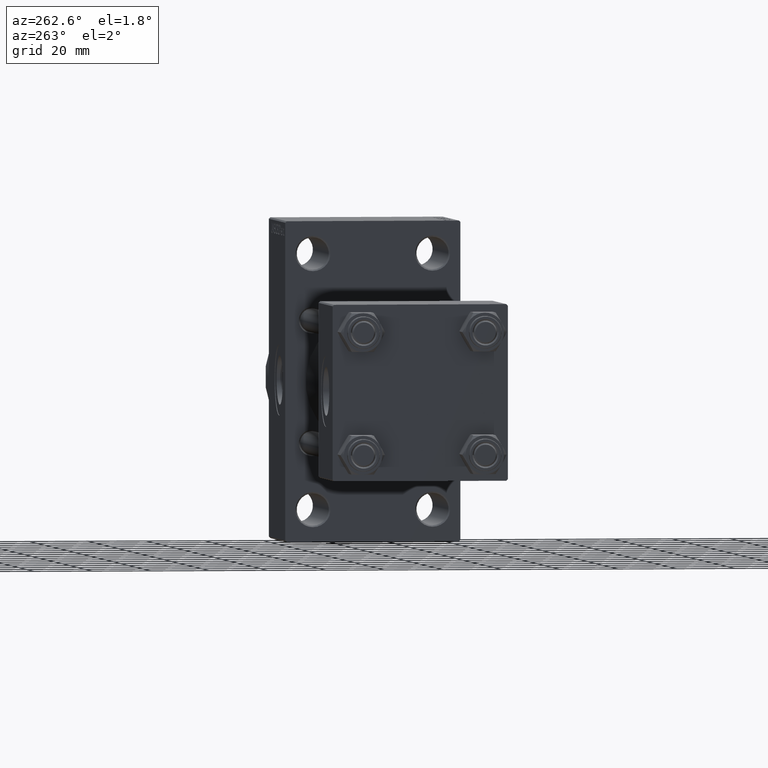
[diagram: clean part render]
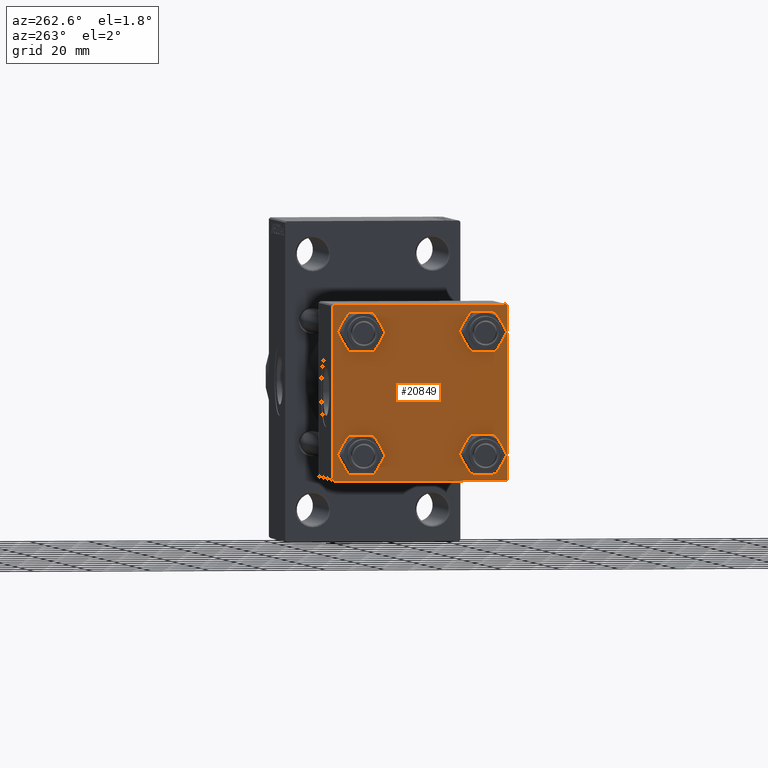
[diagram: same view with one face highlighted and labeled with its STEP entity id]
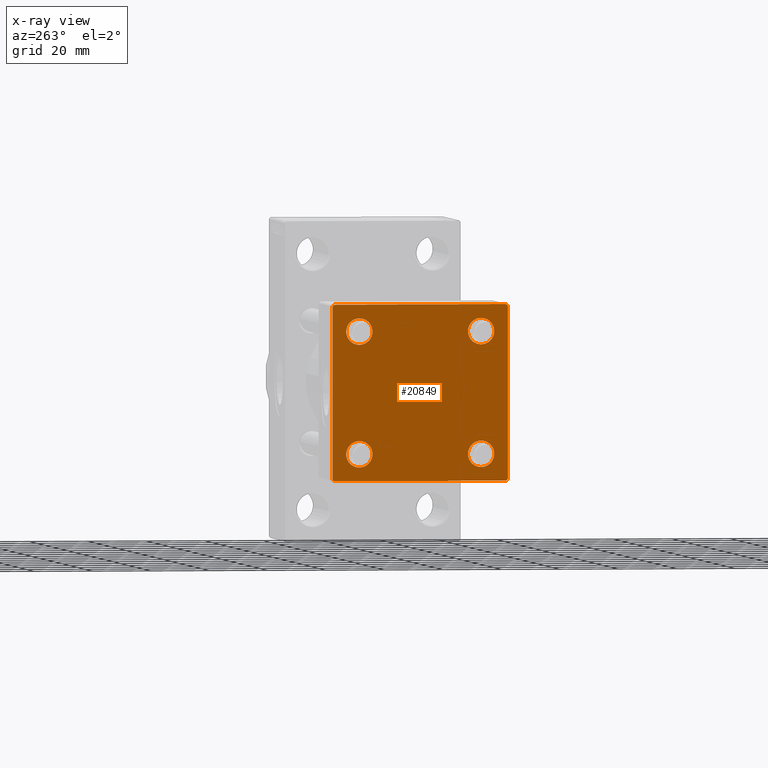
[diagram: x-ray of the same camera — body ghosted, the highlighted face saturated]
A machine part, auxiliary view. The second image highlights one B-rep face of the part: STEP entity #20849.
The next image is the same camera in x-ray: the body ghosted, the highlighted face saturated — about 0% of this face is hidden behind the body in this view.
In plain terms, the highlighted planar face has unit normal (-1, 0, 0).
Its self-contained STEP definition (entity closure, byte-faithful):
#867 = DIRECTION ( 'NONE',  ( 0.000000000000000000, 0.000000000000000000, 1.000000000000000000 ) ) ;
#990 = DIRECTION ( 'NONE',  ( -0.000000000000000000, 0.7071067811865474617, 0.7071067811865474617 ) ) ;
#1443 = ORIENTED_EDGE ( 'NONE', *, *, #4394, .T. ) ;
#2323 = ORIENTED_EDGE ( 'NONE', *, *, #10605, .T. ) ;
#2350 = AXIS2_PLACEMENT_3D ( 'NONE', #9908, #13728, #35718 ) ;
#3143 = CARTESIAN_POINT ( 'NONE',  ( 0.000000000000000000, -20.84999999999999076, -20.85000000000000497 ) ) ;
#3160 = VECTOR ( 'NONE', #990, 1000.000000000000114 ) ;
#3476 = VERTEX_POINT ( 'NONE', #24494 ) ;
#3585 = CARTESIAN_POINT ( 'NONE',  ( 0.000000000000000000, -29.50000000000000000, -30.00000000000000711 ) ) ;
#3857 = DIRECTION ( 'NONE',  ( 1.000000000000000000, -0.000000000000000000, 0.000000000000000000 ) ) ;
#4216 = EDGE_CURVE ( 'NONE', #7960, #3476, #6630, .T. ) ;
#4394 = EDGE_CURVE ( 'NONE', #7960, #18609, #8054, .T. ) ;
#4728 = ORIENTED_EDGE ( 'NONE', *, *, #12747, .T. ) ;
#6600 = CARTESIAN_POINT ( 'NONE',  ( 0.000000000000000000, 20.84999999999999787, -20.85000000000000142 ) ) ;
#6630 = LINE ( 'NONE', #28869, #22681 ) ;
#6731 = DIRECTION ( 'NONE',  ( 0.000000000000000000, -1.000000000000000000, -1.156482317317871725E-16 ) ) ;
#6924 = LINE ( 'NONE', #32986, #38442 ) ;
#7372 = ORIENTED_EDGE ( 'NONE', *, *, #18499, .T. ) ;
#7757 = CARTESIAN_POINT ( 'NONE',  ( 0.000000000000000000, -20.84999999999999076, -20.85000000000000497 ) ) ;
#7960 = VERTEX_POINT ( 'NONE', #35502 ) ;
#7989 = DIRECTION ( 'NONE',  ( 1.000000000000000000, -0.000000000000000000, 0.000000000000000000 ) ) ;
#8054 = LINE ( 'NONE', #15696, #31739 ) ;
#8230 = DIRECTION ( 'NONE',  ( 0.000000000000000000, 0.000000000000000000, 1.000000000000000000 ) ) ;
#8279 = CARTESIAN_POINT ( 'NONE',  ( 0.000000000000000000, 20.84999999999999787, 20.85000000000000142 ) ) ;
#8363 = CARTESIAN_POINT ( 'NONE',  ( 0.000000000000000000, 20.84999999999999787, -20.85000000000000142 ) ) ;
#8868 = ORIENTED_EDGE ( 'NONE', *, *, #19873, .T. ) ;
#8956 = DIRECTION ( 'NONE',  ( 0.000000000000000000, 0.000000000000000000, 1.000000000000000000 ) ) ;
#9288 = AXIS2_PLACEMENT_3D ( 'NONE', #3143, #3857, #25137 ) ;
#9869 = AXIS2_PLACEMENT_3D ( 'NONE', #8279, #44590, #867 ) ;
#9872 = VECTOR ( 'NONE', #46078, 999.9999999999998863 ) ;
#9908 = CARTESIAN_POINT ( 'NONE',  ( 0.000000000000000000, -20.84999999999999076, 20.85000000000000497 ) ) ;
#9994 = CARTESIAN_POINT ( 'NONE',  ( 0.000000000000000000, 29.74999999999957723, -29.75000000000040501 ) ) ;
#10014 = CIRCLE ( 'NONE', #9288, 4.500000000000017764 ) ;
#10504 = LINE ( 'NONE', #21506, #18946 ) ;
#10587 = VERTEX_POINT ( 'NONE', #22023 ) ;
#10605 = EDGE_CURVE ( 'NONE', #45793, #20346, #10014, .T. ) ;
#11517 = CARTESIAN_POINT ( 'NONE',  ( -0.000000000000000000, -29.74999999999999645, 29.74999999999999645 ) ) ;
#12050 = CARTESIAN_POINT ( 'NONE',  ( 0.000000000000000000, 20.84999999999999787, -25.35000000000001918 ) ) ;
#12642 = DIRECTION ( 'NONE',  ( -1.000000000000000000, 0.000000000000000000, -0.000000000000000000 ) ) ;
#12747 = EDGE_CURVE ( 'NONE', #42149, #37744, #28971, .T. ) ;
#12772 = CARTESIAN_POINT ( 'NONE',  ( 0.000000000000000000, 20.84999999999999787, 20.85000000000000142 ) ) ;
#13728 = DIRECTION ( 'NONE',  ( 1.000000000000000000, -0.000000000000000000, 0.000000000000000000 ) ) ;
#13858 = EDGE_CURVE ( 'NONE', #38407, #3476, #19390, .T. ) ;
#14162 = DIRECTION ( 'NONE',  ( 1.000000000000000000, -0.000000000000000000, 0.000000000000000000 ) ) ;
#14332 = EDGE_CURVE ( 'NONE', #28217, #38346, #32207, .T. ) ;
#15696 = CARTESIAN_POINT ( 'NONE',  ( 0.000000000000000000, 29.74999999999999645, 29.74999999999999645 ) ) ;
#15760 = DIRECTION ( 'NONE',  ( 0.000000000000000000, 0.000000000000000000, 1.000000000000000000 ) ) ;
#16234 = CARTESIAN_POINT ( 'NONE',  ( 0.000000000000000000, -20.84999999999999076, 25.35000000000002274 ) ) ;
#16248 = AXIS2_PLACEMENT_3D ( 'NONE', #7757, #7989, #8230 ) ;
#16388 = CIRCLE ( 'NONE', #20955, 4.500000000000017764 ) ;
#16488 = EDGE_LOOP ( 'NONE', ( #30243, #2323 ) ) ;
#16496 = ORIENTED_EDGE ( 'NONE', *, *, #37152, .T. ) ;
#16754 = EDGE_CURVE ( 'NONE', #20346, #45793, #23887, .T. ) ;
#16992 = DIRECTION ( 'NONE',  ( 0.000000000000000000, -0.7071067811865474617, 0.7071067811865474617 ) ) ;
#17117 = CIRCLE ( 'NONE', #36945, 4.500000000000017764 ) ;
#17249 = CARTESIAN_POINT ( 'NONE',  ( 0.000000000000000000, 29.99999999999999289, -30.00000000000000000 ) ) ;
#18499 = EDGE_CURVE ( 'NONE', #10587, #19920, #33074, .T. ) ;
#18609 = VERTEX_POINT ( 'NONE', #37341 ) ;
#18946 = VECTOR ( 'NONE', #36084, 1000.000000000000000 ) ;
#19349 = FACE_BOUND ( 'NONE', #41340, .T. ) ;
#19390 = LINE ( 'NONE', #11517, #3160 ) ;
#19823 = CIRCLE ( 'NONE', #9869, 4.500000000000017764 ) ;
#19873 = EDGE_CURVE ( 'NONE', #18609, #39795, #6924, .T. ) ;
#19920 = VERTEX_POINT ( 'NONE', #16234 ) ;
#20346 = VERTEX_POINT ( 'NONE', #29519 ) ;
#20729 = AXIS2_PLACEMENT_3D ( 'NONE', #6600, #21180, #25480 ) ;
#20849 = ADVANCED_FACE ( 'NONE', ( #37978, #34407, #19349, #30820, #30116 ), #45374, .T. ) ;
#20854 = CARTESIAN_POINT ( 'NONE',  ( 0.000000000000000000, -20.84999999999999076, 20.85000000000000497 ) ) ;
#20864 = EDGE_CURVE ( 'NONE', #38346, #28217, #17117, .T. ) ;
#20905 = CARTESIAN_POINT ( 'NONE',  ( 0.000000000000000000, -30.00000000000000000, -29.50000000000001776 ) ) ;
#20955 = AXIS2_PLACEMENT_3D ( 'NONE', #12772, #24225, #8956 ) ;
#21180 = DIRECTION ( 'NONE',  ( 1.000000000000000000, -0.000000000000000000, 0.000000000000000000 ) ) ;
#21409 = EDGE_CURVE ( 'NONE', #46199, #27266, #16388, .T. ) ;
#21506 = CARTESIAN_POINT ( 'NONE',  ( 0.000000000000000000, -30.00000000000000000, 29.99999999999999289 ) ) ;
#21524 = ORIENTED_EDGE ( 'NONE', *, *, #20864, .T. ) ;
#21737 = DIRECTION ( 'NONE',  ( 0.000000000000000000, 0.000000000000000000, -1.000000000000000000 ) ) ;
#21819 = DIRECTION ( 'NONE',  ( 0.000000000000000000, 0.000000000000000000, 1.000000000000000000 ) ) ;
#21830 = EDGE_CURVE ( 'NONE', #37744, #40565, #42315, .T. ) ;
#22023 = CARTESIAN_POINT ( 'NONE',  ( 0.000000000000000000, -20.84999999999999076, 16.34999999999998721 ) ) ;
#22042 = CARTESIAN_POINT ( 'NONE',  ( 0.000000000000000000, 29.99999999999999289, -29.50000000000000000 ) ) ;
#22681 = VECTOR ( 'NONE', #24795, 1000.000000000000000 ) ;
#22942 = DIRECTION ( 'NONE',  ( 1.000000000000000000, -0.000000000000000000, 0.000000000000000000 ) ) ;
#23887 = CIRCLE ( 'NONE', #16248, 4.500000000000017764 ) ;
#24225 = DIRECTION ( 'NONE',  ( 1.000000000000000000, -0.000000000000000000, 0.000000000000000000 ) ) ;
#24462 = CIRCLE ( 'NONE', #2350, 4.500000000000017764 ) ;
#24494 = CARTESIAN_POINT ( 'NONE',  ( 0.000000000000000000, -29.49999999999998579, 29.99999999999999289 ) ) ;
#24540 = CARTESIAN_POINT ( 'NONE',  ( 0.000000000000000000, 20.84999999999999787, 25.35000000000001918 ) ) ;
#24795 = DIRECTION ( 'NONE',  ( 0.000000000000000000, -1.000000000000000000, -1.156482317317871725E-16 ) ) ;
#25137 = DIRECTION ( 'NONE',  ( 0.000000000000000000, 0.000000000000000000, 1.000000000000000000 ) ) ;
#25480 = DIRECTION ( 'NONE',  ( 0.000000000000000000, 0.000000000000000000, 1.000000000000000000 ) ) ;
#26212 = AXIS2_PLACEMENT_3D ( 'NONE', #20854, #14162, #21819 ) ;
#27238 = DIRECTION ( 'NONE',  ( -0.000000000000000000, 0.000000000000000000, 1.000000000000000000 ) ) ;
#27266 = VERTEX_POINT ( 'NONE', #32225 ) ;
#28217 = VERTEX_POINT ( 'NONE', #12050 ) ;
#28869 = CARTESIAN_POINT ( 'NONE',  ( 0.000000000000000000, 29.99999999999999289, 30.00000000000000000 ) ) ;
#28971 = LINE ( 'NONE', #17249, #42899 ) ;
#29519 = CARTESIAN_POINT ( 'NONE',  ( 0.000000000000000000, -20.84999999999999076, -16.34999999999998721 ) ) ;
#30116 = FACE_OUTER_BOUND ( 'NONE', #41166, .T. ) ;
#30243 = ORIENTED_EDGE ( 'NONE', *, *, #16754, .T. ) ;
#30286 = DIRECTION ( 'NONE',  ( 0.000000000000000000, 0.7071067811865474617, -0.7071067811865474617 ) ) ;
#30603 = ORIENTED_EDGE ( 'NONE', *, *, #21409, .T. ) ;
#30820 = FACE_BOUND ( 'NONE', #33891, .T. ) ;
#31457 = ORIENTED_EDGE ( 'NONE', *, *, #4216, .F. ) ;
#31739 = VECTOR ( 'NONE', #30286, 1000.000000000000114 ) ;
#31753 = ORIENTED_EDGE ( 'NONE', *, *, #40100, .F. ) ;
#32207 = CIRCLE ( 'NONE', #20729, 4.500000000000017764 ) ;
#32225 = CARTESIAN_POINT ( 'NONE',  ( 0.000000000000000000, 20.84999999999999787, 16.34999999999998366 ) ) ;
#32408 = VECTOR ( 'NONE', #16992, 1000.000000000000114 ) ;
#32986 = CARTESIAN_POINT ( 'NONE',  ( 0.000000000000000000, 29.99999999999999289, 30.00000000000000000 ) ) ;
#33074 = CIRCLE ( 'NONE', #26212, 4.500000000000017764 ) ;
#33255 = CARTESIAN_POINT ( 'NONE',  ( 0.000000000000000000, -20.84999999999999076, -25.35000000000002274 ) ) ;
#33891 = EDGE_LOOP ( 'NONE', ( #30603, #43850 ) ) ;
#34407 = FACE_BOUND ( 'NONE', #16488, .T. ) ;
#34468 = EDGE_LOOP ( 'NONE', ( #16496, #7372 ) ) ;
#35502 = CARTESIAN_POINT ( 'NONE',  ( 0.000000000000000000, 29.49999999999999289, 30.00000000000000000 ) ) ;
#35718 = DIRECTION ( 'NONE',  ( 0.000000000000000000, 0.000000000000000000, 1.000000000000000000 ) ) ;
#35829 = CARTESIAN_POINT ( 'NONE',  ( 0.000000000000000000, 20.84999999999999787, -16.34999999999998366 ) ) ;
#36084 = DIRECTION ( 'NONE',  ( 0.000000000000000000, 0.000000000000000000, -1.000000000000000000 ) ) ;
#36181 = AXIS2_PLACEMENT_3D ( 'NONE', #44666, #12642, #27238 ) ;
#36945 = AXIS2_PLACEMENT_3D ( 'NONE', #8363, #22942, #15760 ) ;
#37152 = EDGE_CURVE ( 'NONE', #19920, #10587, #24462, .T. ) ;
#37341 = CARTESIAN_POINT ( 'NONE',  ( 0.000000000000000000, 29.99999999999999289, 29.50000000000000000 ) ) ;
#37744 = VERTEX_POINT ( 'NONE', #3585 ) ;
#37796 = ORIENTED_EDGE ( 'NONE', *, *, #14332, .T. ) ;
#37978 = FACE_BOUND ( 'NONE', #34468, .T. ) ;
#38346 = VERTEX_POINT ( 'NONE', #35829 ) ;
#38407 = VERTEX_POINT ( 'NONE', #43341 ) ;
#38442 = VECTOR ( 'NONE', #21737, 1000.000000000000000 ) ;
#38920 = ORIENTED_EDGE ( 'NONE', *, *, #13858, .T. ) ;
#39795 = VERTEX_POINT ( 'NONE', #22042 ) ;
#40027 = CARTESIAN_POINT ( 'NONE',  ( 0.000000000000000000, 29.49999999999997868, -30.00000000000000000 ) ) ;
#40086 = ORIENTED_EDGE ( 'NONE', *, *, #21830, .T. ) ;
#40100 = EDGE_CURVE ( 'NONE', #38407, #40565, #10504, .T. ) ;
#40565 = VERTEX_POINT ( 'NONE', #20905 ) ;
#41166 = EDGE_LOOP ( 'NONE', ( #8868, #47090, #4728, #40086, #31753, #38920, #31457, #1443 ) ) ;
#41340 = EDGE_LOOP ( 'NONE', ( #21524, #37796 ) ) ;
#41859 = CARTESIAN_POINT ( 'NONE',  ( 0.000000000000000000, -29.75000000000001066, -29.75000000000001066 ) ) ;
#42149 = VERTEX_POINT ( 'NONE', #40027 ) ;
#42273 = LINE ( 'NONE', #9994, #9872 ) ;
#42315 = LINE ( 'NONE', #41859, #32408 ) ;
#42899 = VECTOR ( 'NONE', #6731, 1000.000000000000000 ) ;
#43341 = CARTESIAN_POINT ( 'NONE',  ( 0.000000000000000000, -30.00000000000000000, 29.49999999999999289 ) ) ;
#43732 = EDGE_CURVE ( 'NONE', #39795, #42149, #42273, .T. ) ;
#43850 = ORIENTED_EDGE ( 'NONE', *, *, #47286, .T. ) ;
#44590 = DIRECTION ( 'NONE',  ( 1.000000000000000000, -0.000000000000000000, 0.000000000000000000 ) ) ;
#44666 = CARTESIAN_POINT ( 'NONE',  ( 0.000000000000000000, 0.000000000000000000, 0.000000000000000000 ) ) ;
#45374 = PLANE ( 'NONE',  #36181 ) ;
#45793 = VERTEX_POINT ( 'NONE', #33255 ) ;
#46078 = DIRECTION ( 'NONE',  ( -0.000000000000000000, -0.7071067811865574537, -0.7071067811865376918 ) ) ;
#46199 = VERTEX_POINT ( 'NONE', #24540 ) ;
#47090 = ORIENTED_EDGE ( 'NONE', *, *, #43732, .T. ) ;
#47286 = EDGE_CURVE ( 'NONE', #27266, #46199, #19823, .T. ) ;